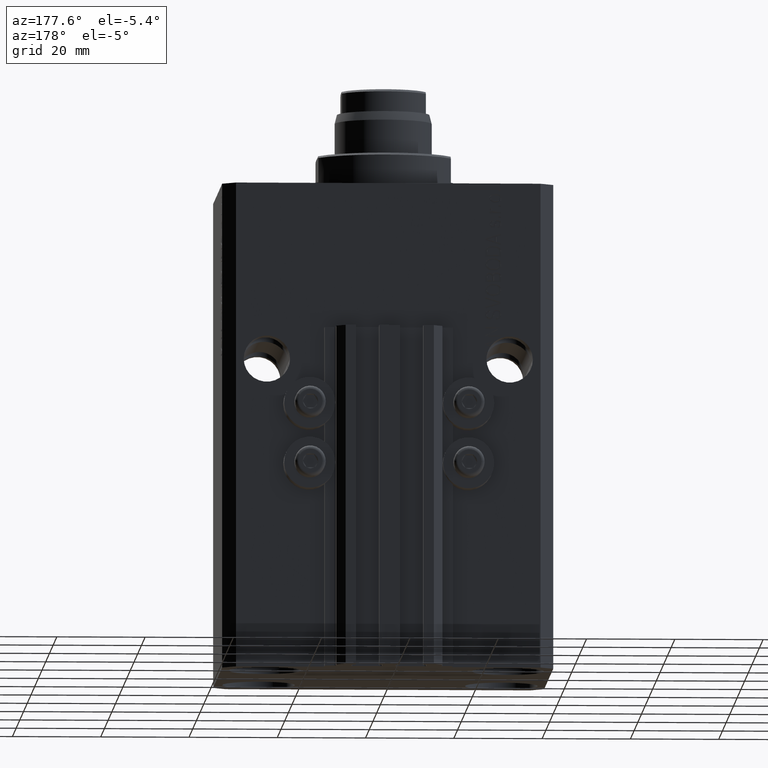
[diagram: clean part render]
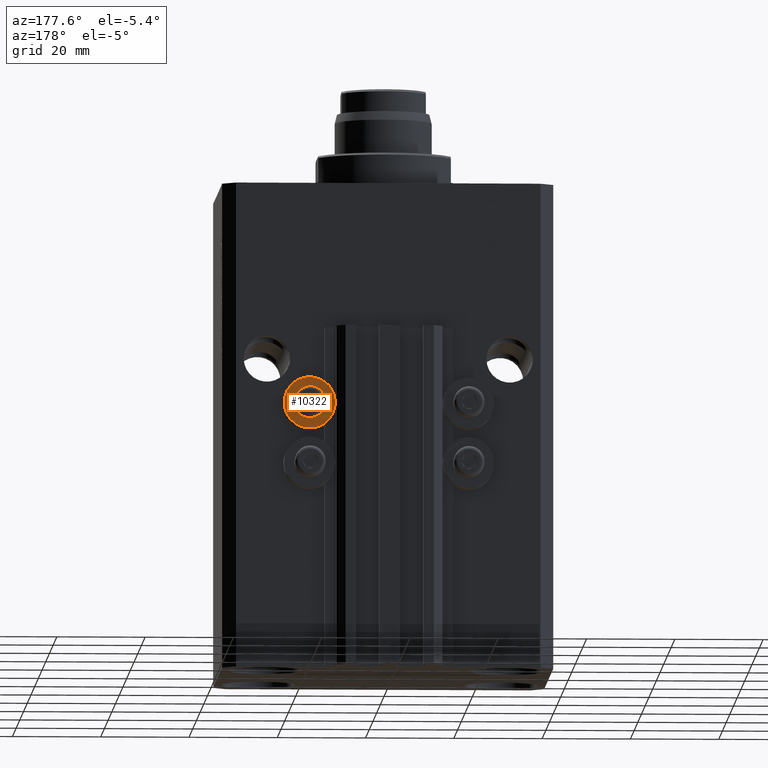
[diagram: same view with one face highlighted and labeled with its STEP entity id]
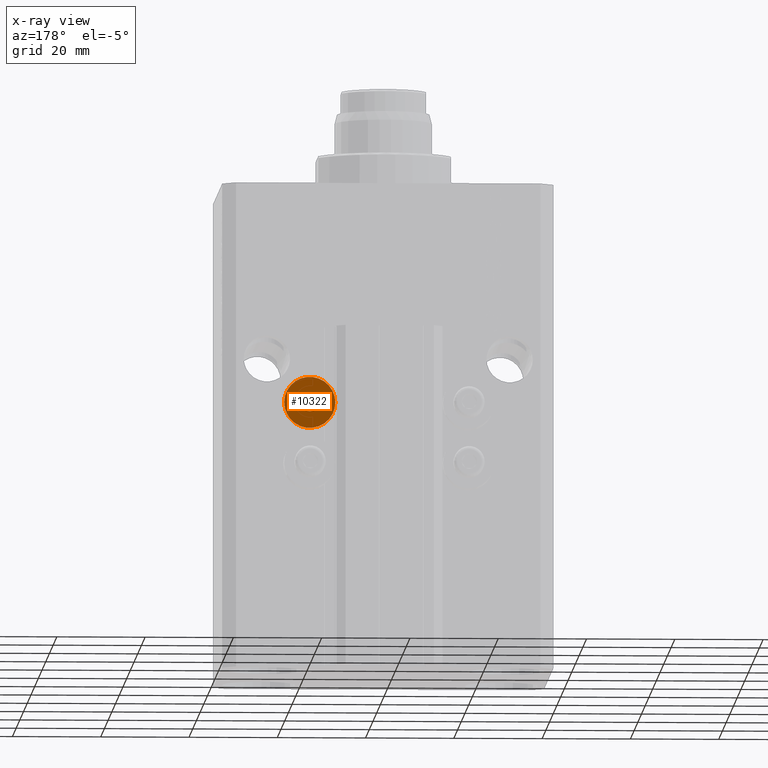
[diagram: x-ray of the same camera — body ghosted, the highlighted face saturated]
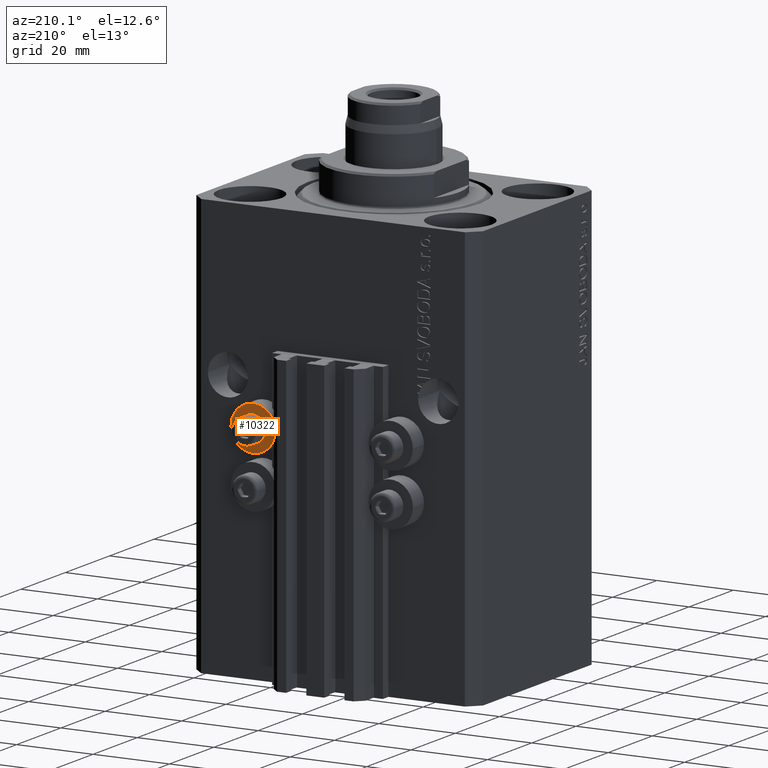
[diagram: same view with one face highlighted and labeled with its STEP entity id]
A machine part, auxiliary view. The second image highlights one B-rep face of the part: STEP entity #10322.
The next image is the same camera in x-ray: the body ghosted, the highlighted face saturated — about 0% of this face is hidden behind the body in this view.
A second angle (auxiliary view) of the same face is appended — the face is thin or edge-on in the first view.
In plain terms, the highlighted planar face has unit normal (-0, -1, 0).
Its self-contained STEP definition (entity closure, byte-faithful):
#990 = ORIENTED_EDGE ( 'NONE', *, *, #37603, .T. ) ;
#1409 = CARTESIAN_POINT ( 'NONE',  ( 12.20000000000000639, 32.49999999996099831, -50.39999999999999858 ) ) ;
#3655 = CARTESIAN_POINT ( 'NONE',  ( 18.00000000000002487, 32.49999999996100541, -48.39999999999999858 ) ) ;
#4032 = EDGE_CURVE ( 'NONE', #20511, #14659, #15240, .T. ) ;
#4806 = DIRECTION ( 'NONE',  ( 0.000000000000000000, 0.000000000000000000, 1.000000000000000000 ) ) ;
#5202 = EDGE_CURVE ( 'NONE', #16039, #28087, #36921, .T. ) ;
#7935 = CIRCLE ( 'NONE', #18364, 2.000000000000001776 ) ;
#8143 = DIRECTION ( 'NONE',  ( -6.938893903961350152E-16, -1.000000000000000000, -0.000000000000000000 ) ) ;
#8773 = DIRECTION ( 'NONE',  ( -0.000000000000000000, -1.000000000000000000, -0.000000000000000000 ) ) ;
#10322 = ADVANCED_FACE ( 'NONE', ( #18413, #32484 ), #32251, .F. ) ;
#10944 = CARTESIAN_POINT ( 'NONE',  ( 18.00000000000000711, 32.49999999996099120, -50.39999999999999858 ) ) ;
#12245 = AXIS2_PLACEMENT_3D ( 'NONE', #10944, #8143, #29417 ) ;
#12505 = CARTESIAN_POINT ( 'NONE',  ( 18.00000000000002487, 32.49999999996100541, -50.39999999999999858 ) ) ;
#14659 = VERTEX_POINT ( 'NONE', #1409 ) ;
#15240 = CIRCLE ( 'NONE', #12245, 5.799999999999999822 ) ;
#16039 = VERTEX_POINT ( 'NONE', #3655 ) ;
#16462 = ORIENTED_EDGE ( 'NONE', *, *, #4032, .F. ) ;
#17387 = CARTESIAN_POINT ( 'NONE',  ( 18.00000000000000711, 32.49999999996099120, -50.39999999999999858 ) ) ;
#18364 = AXIS2_PLACEMENT_3D ( 'NONE', #39670, #42497, #24925 ) ;
#18413 = FACE_BOUND ( 'NONE', #37652, .T. ) ;
#19739 = AXIS2_PLACEMENT_3D ( 'NONE', #12505, #8773, #4806 ) ;
#19976 = DIRECTION ( 'NONE',  ( -6.938893903961350152E-16, -1.000000000000000000, -0.000000000000000000 ) ) ;
#20511 = VERTEX_POINT ( 'NONE', #33773 ) ;
#24925 = DIRECTION ( 'NONE',  ( 0.000000000000000000, 0.000000000000000000, 1.000000000000000000 ) ) ;
#26395 = CIRCLE ( 'NONE', #45079, 5.799999999999999822 ) ;
#27648 = EDGE_CURVE ( 'NONE', #14659, #20511, #26395, .T. ) ;
#28087 = VERTEX_POINT ( 'NONE', #29274 ) ;
#28216 = ORIENTED_EDGE ( 'NONE', *, *, #27648, .F. ) ;
#28970 = DIRECTION ( 'NONE',  ( -1.000000000000000000, 6.938893903961350152E-16, 0.000000000000000000 ) ) ;
#29274 = CARTESIAN_POINT ( 'NONE',  ( 18.00000000000002487, 32.49999999996100541, -52.40000000000000568 ) ) ;
#29417 = DIRECTION ( 'NONE',  ( 1.000000000000000000, -1.196361017915039437E-15, 0.000000000000000000 ) ) ;
#32251 = PLANE ( 'NONE',  #39361 ) ;
#32484 = FACE_OUTER_BOUND ( 'NONE', #34019, .T. ) ;
#33773 = CARTESIAN_POINT ( 'NONE',  ( 23.80000000000000426, 32.49999999996098410, -50.39999999999999858 ) ) ;
#34019 = EDGE_LOOP ( 'NONE', ( #16462, #28216 ) ) ;
#35976 = DIRECTION ( 'NONE',  ( -6.938893903961350152E-16, -1.000000000000000000, 0.000000000000000000 ) ) ;
#36569 = ORIENTED_EDGE ( 'NONE', *, *, #5202, .T. ) ;
#36921 = CIRCLE ( 'NONE', #19739, 2.000000000000001776 ) ;
#37603 = EDGE_CURVE ( 'NONE', #28087, #16039, #7935, .T. ) ;
#37652 = EDGE_LOOP ( 'NONE', ( #36569, #990 ) ) ;
#39260 = CARTESIAN_POINT ( 'NONE',  ( 12.20000000000000639, 32.49999999996099831, -50.39999999999999858 ) ) ;
#39361 = AXIS2_PLACEMENT_3D ( 'NONE', #39260, #35976, #28970 ) ;
#39670 = CARTESIAN_POINT ( 'NONE',  ( 18.00000000000002487, 32.49999999996100541, -50.39999999999999858 ) ) ;
#42497 = DIRECTION ( 'NONE',  ( -0.000000000000000000, -1.000000000000000000, -0.000000000000000000 ) ) ;
#45079 = AXIS2_PLACEMENT_3D ( 'NONE', #17387, #19976, #45508 ) ;
#45508 = DIRECTION ( 'NONE',  ( 1.000000000000000000, -1.196361017915039437E-15, 0.000000000000000000 ) ) ;